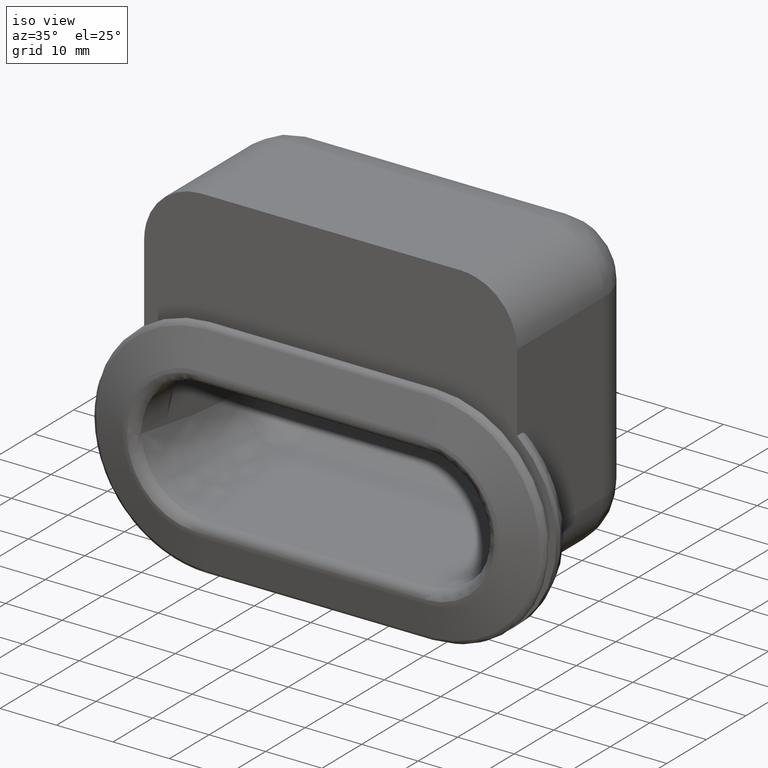
[diagram: clean part render]
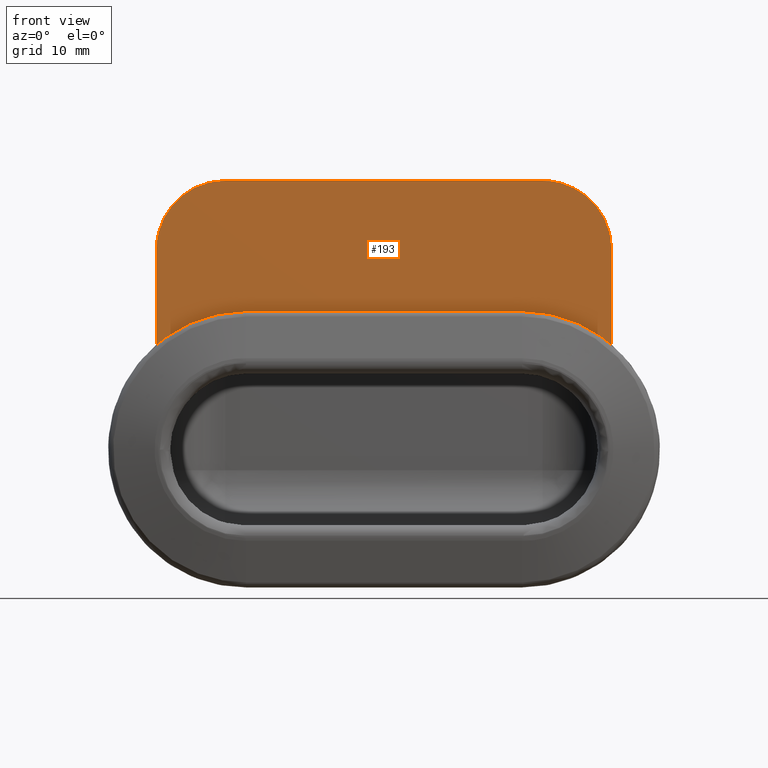
[diagram: tour spotlight — one face highlighted and labeled with its STEP entity id]
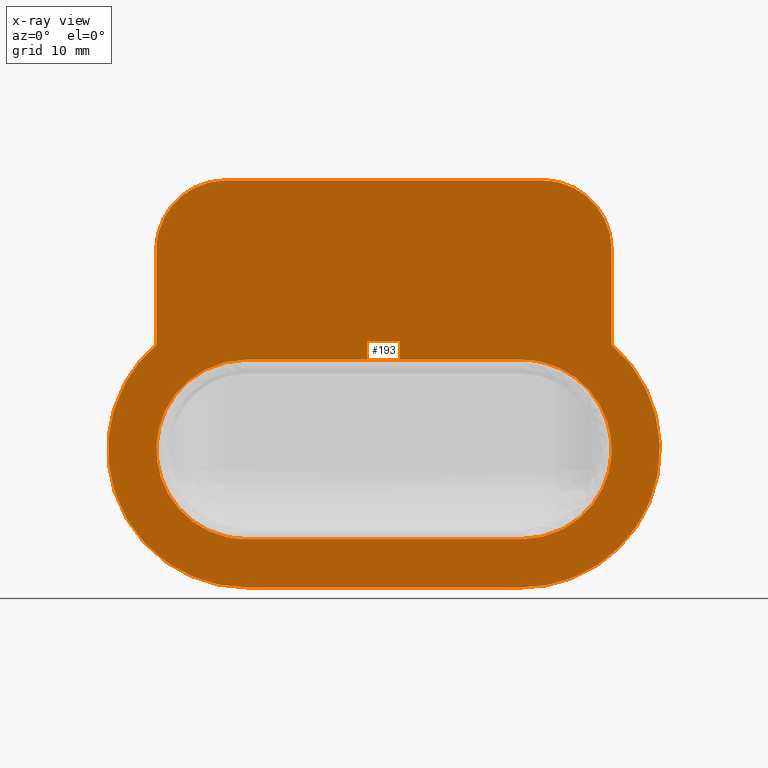
[diagram: x-ray of the same camera — body ghosted, this tour face saturated]
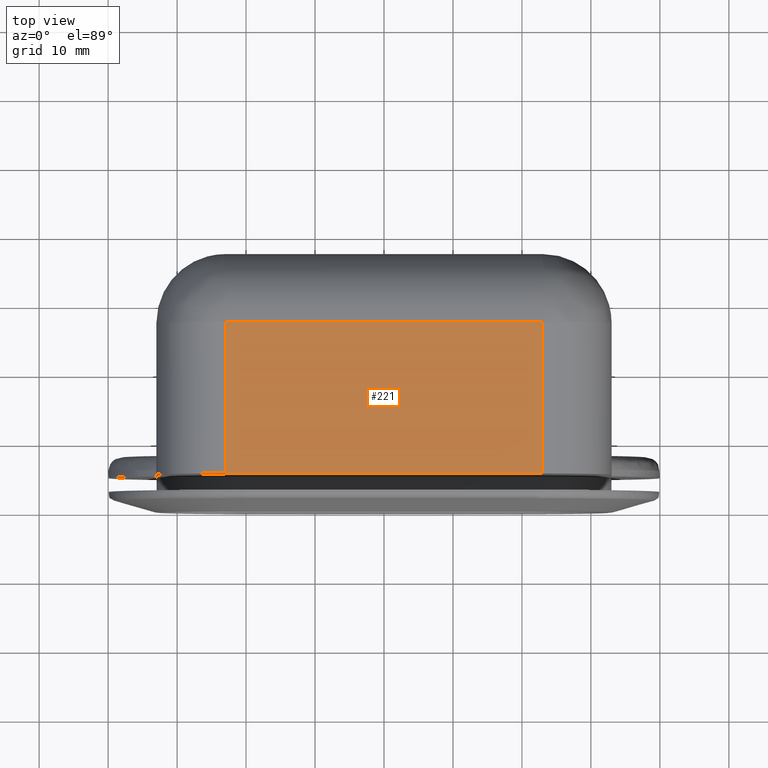
[diagram: tour spotlight — one face highlighted and labeled with its STEP entity id]
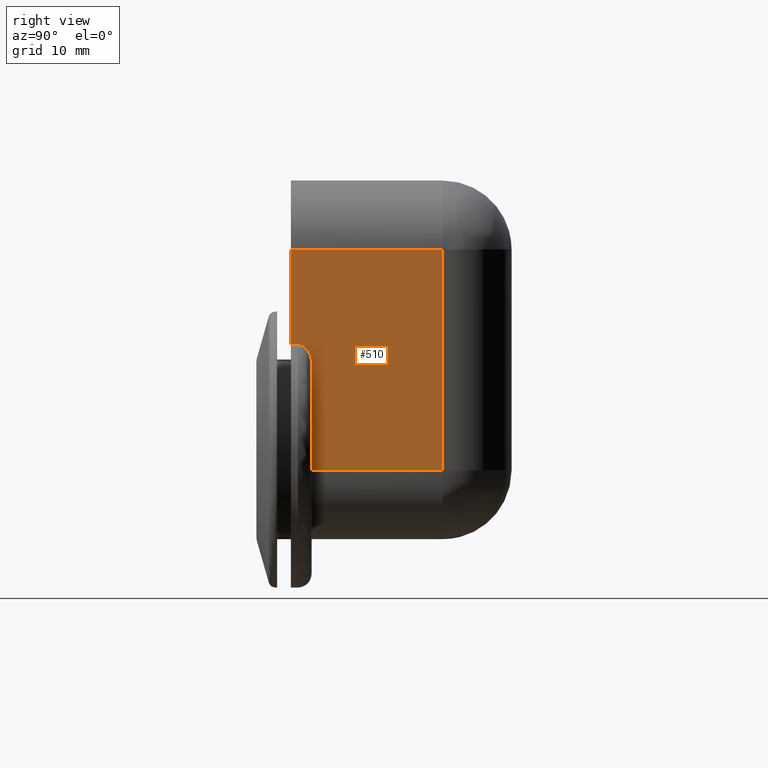
[diagram: tour spotlight — one face highlighted and labeled with its STEP entity id]
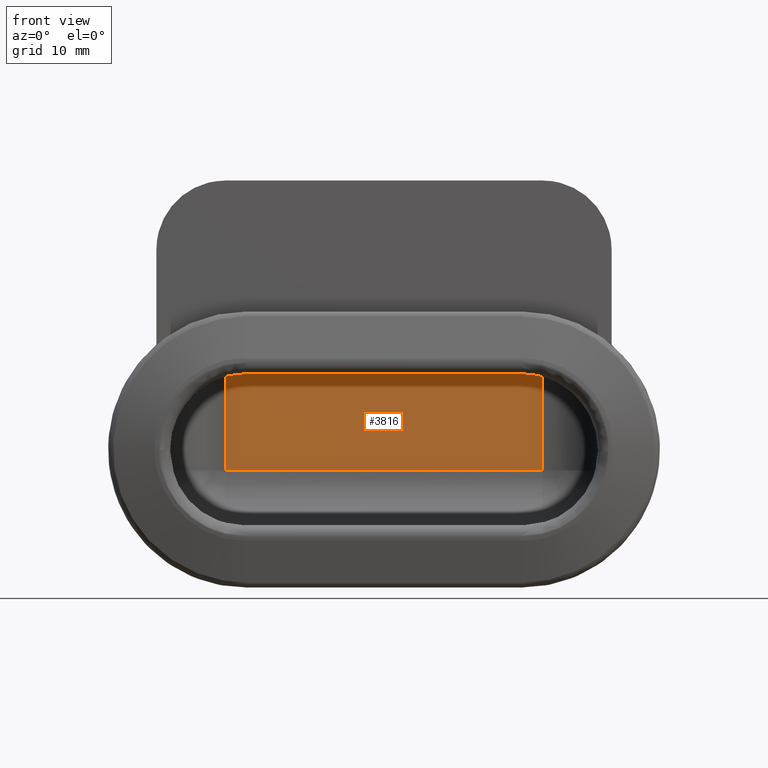
[diagram: tour spotlight — one face highlighted and labeled with its STEP entity id]
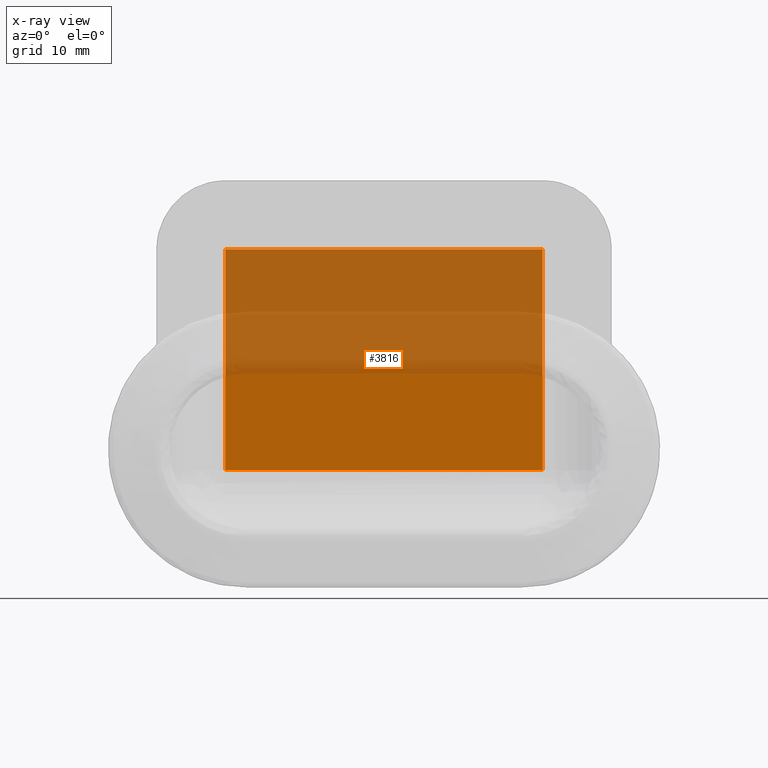
[diagram: x-ray of the same camera — body ghosted, this tour face saturated]
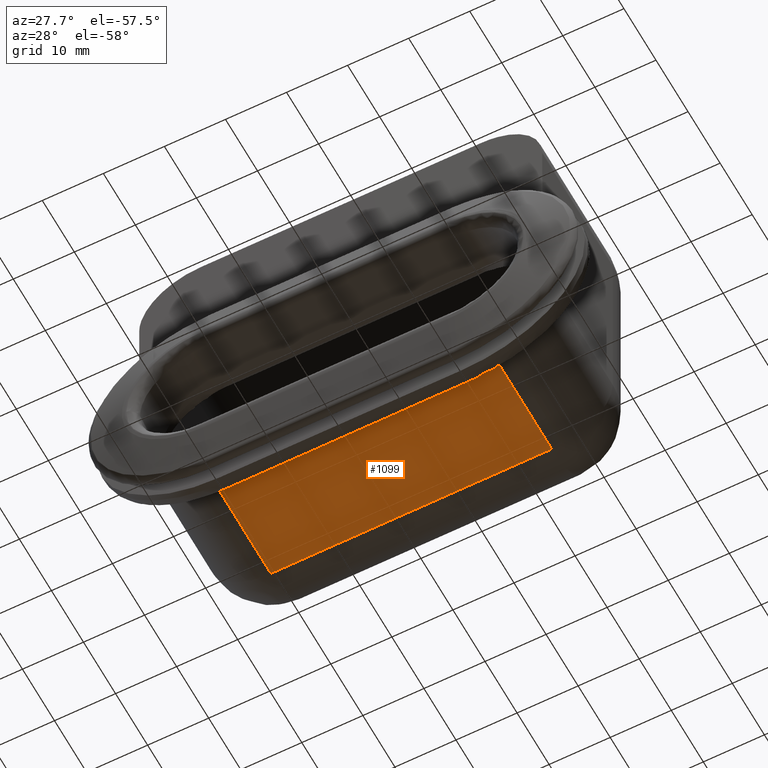
[diagram: tour spotlight — one face highlighted and labeled with its STEP entity id]
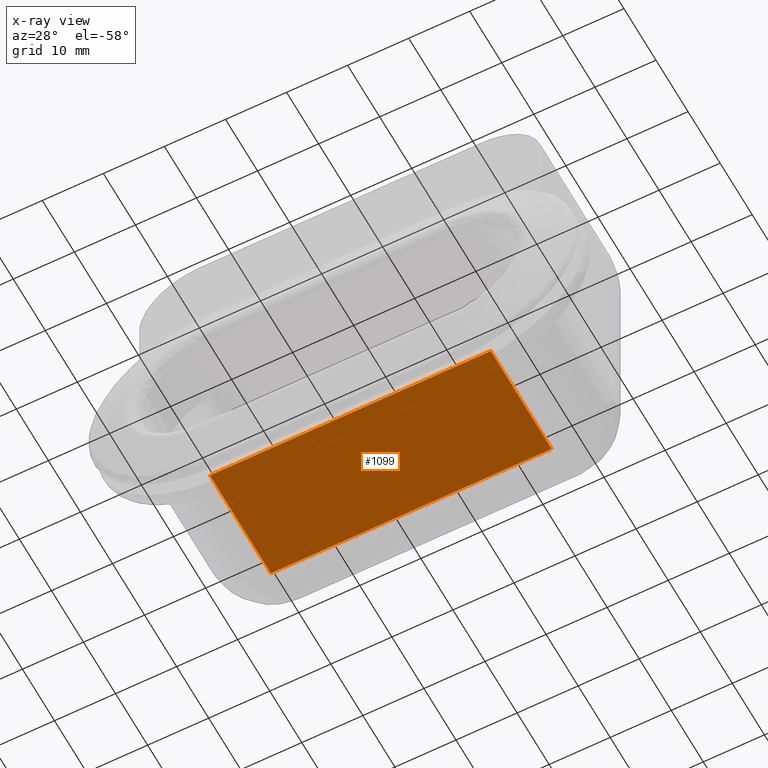
[diagram: x-ray of the same camera — body ghosted, this tour face saturated]
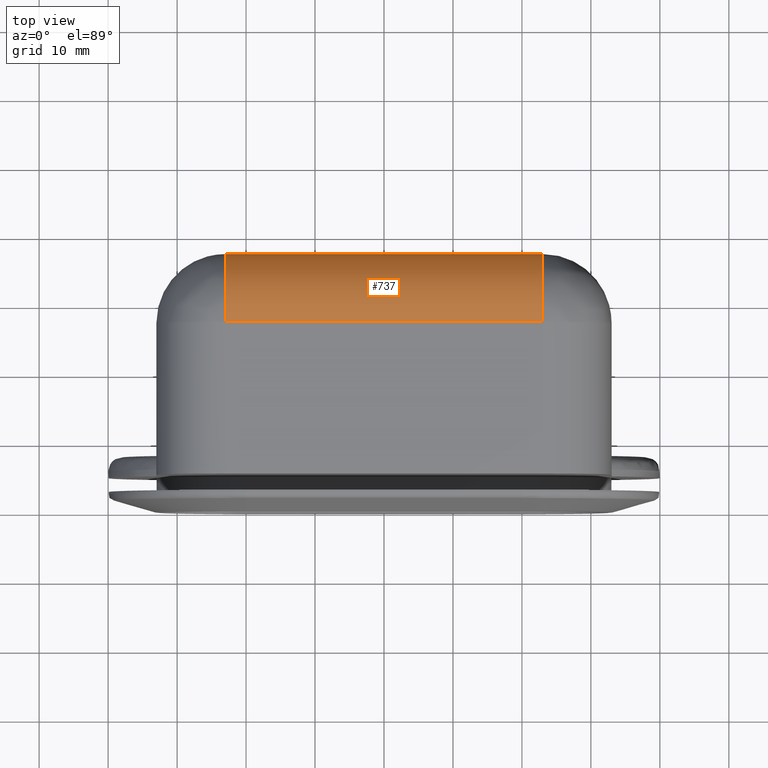
[diagram: tour spotlight — one face highlighted and labeled with its STEP entity id]
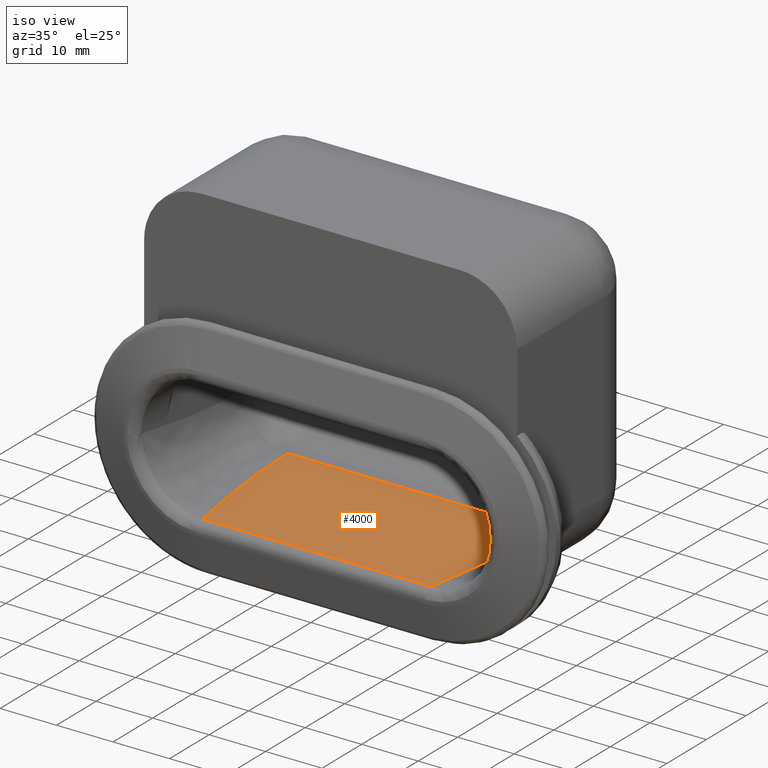
[diagram: tour spotlight — one face highlighted and labeled with its STEP entity id]
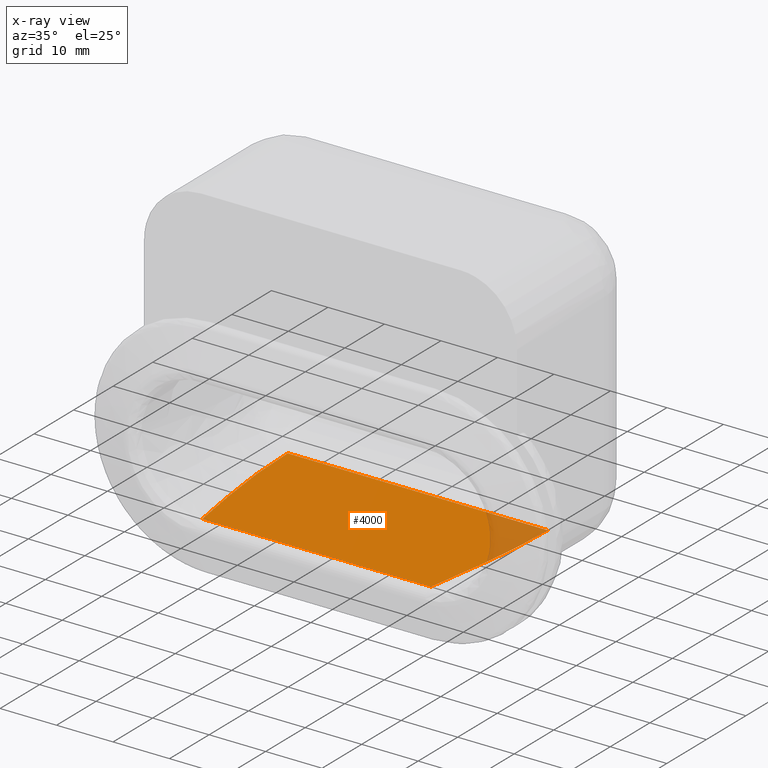
[diagram: x-ray of the same camera — body ghosted, this tour face saturated]
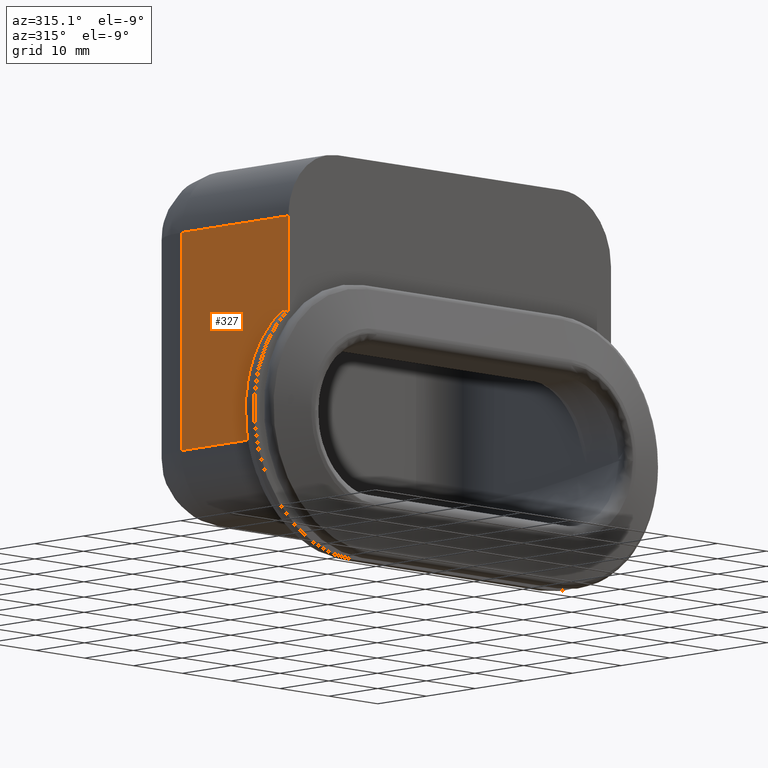
[diagram: tour spotlight — one face highlighted and labeled with its STEP entity id]
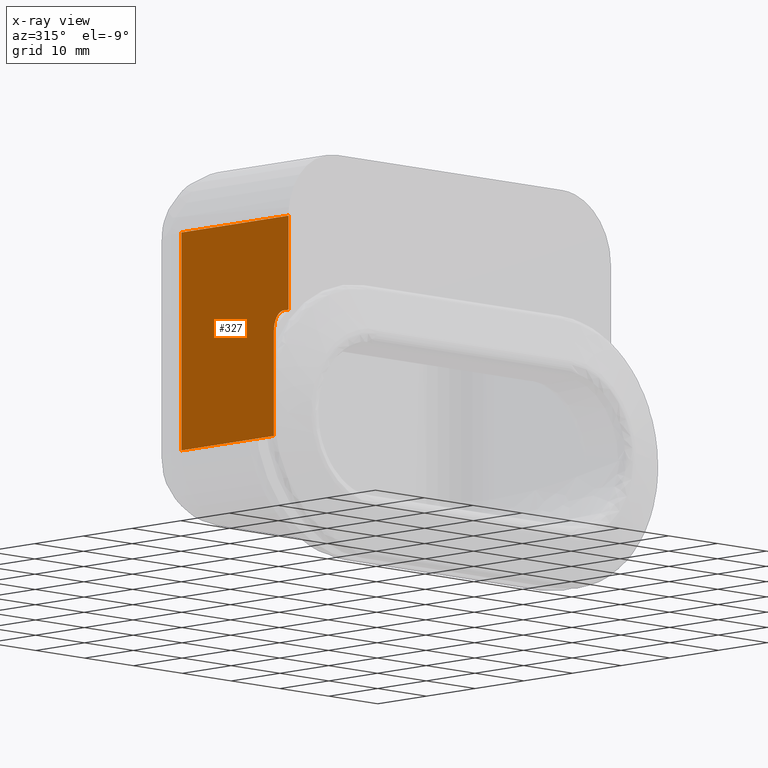
[diagram: x-ray of the same camera — body ghosted, this tour face saturated]
A machine part: a face-by-face anatomy tour. The part has 82 B-rep faces; the first image is the clean iso view, then the 8 largest visible faces are spotlighted one at a time (largest first), each with its STEP entity span.

Face 1 — front view, entity #193. An x-ray twin of the same camera follows (body ghosted, this face saturated) — the face is partly hidden behind the body. In plain terms, the highlighted face is a freeform B-spline surface patch.
Definition (entity closure, byte-faithful):
#44=CARTESIAN_POINT('',(-43.986584867967487,5.0,41.947049885646543));
#45=CARTESIAN_POINT('',(-43.986584867967487,5.0,-22.947051468149859));
#46=CARTESIAN_POINT('',(43.986583924077017,5.0,41.947049885646543));
#47=CARTESIAN_POINT('',(43.986583924077017,5.0,-22.947051468149859));
#48=B_SPLINE_SURFACE_WITH_KNOTS('',1,1,((#44,#46),(#45,#47)),.UNSPECIFIED.,.F.,.F.,.U.,(2,2),(2,2),(0.0,64.894101353796401),(0.0,87.973168792044504),.UNSPECIFIED.);
#49=CARTESIAN_POINT('',(33.0,5.0,15.198684153570650));
#50=VERTEX_POINT('',#49);
#51=CARTESIAN_POINT('',(20.0,5.0,-20.0));
#52=VERTEX_POINT('',#51);
#53=CARTESIAN_POINT('',(33.000000000000007,5.0,15.198684153570660));
#54=CARTESIAN_POINT('',(43.588794347065352,5.000000000000001,6.141694408868965));
#55=CARTESIAN_POINT('',(38.761312361764752,5.0,-6.929152795565516));
#56=CARTESIAN_POINT('',(33.933830376464137,5.000000000000001,-20.000000000000007));
#57=CARTESIAN_POINT('',(20.0,5.0,-20.0));
#65=(BOUNDED_CURVE()B_SPLINE_CURVE(2,(#53,#54,#55,#56,#57),.UNSPECIFIED.,.F.,.U.)B_SPLINE_CURVE_WITH_KNOTS((3,2,3),(0.0,0.500000000000000,1.0),.UNSPECIFIED.)CURVE()GEOMETRIC_REPRESENTATION_ITEM()RATIONAL_B_SPLINE_CURVE((1.0,0.820505222341173,1.0,0.820505222341173,1.0))REPRESENTATION_ITEM(''));
#66=EDGE_CURVE('',#50,#52,#65,.T.);
#67=ORIENTED_EDGE('',*,*,#66,.F.);
#68=CARTESIAN_POINT('',(33.0,5.0,29.0));
#69=VERTEX_POINT('',#68);
#70=CARTESIAN_POINT('',(33.0,5.0,15.198684153570650));
#71=CARTESIAN_POINT('',(33.0,5.0,29.0));
#72=QUASI_UNIFORM_CURVE('',1,(#70,#71),.UNSPECIFIED.,.F.,.U.);
#73=EDGE_CURVE('',#50,#69,#72,.T.);
#74=ORIENTED_EDGE('',*,*,#73,.T.);
#75=CARTESIAN_POINT('',(23.0,5.0,39.0));
#76=VERTEX_POINT('',#75);
#77=CARTESIAN_POINT('',(33.0,5.0,29.0));
#78=CARTESIAN_POINT('',(33.0,5.000000000000001,39.000000000000007));
#79=CARTESIAN_POINT('',(23.0,5.0,39.0));
#87=(BOUNDED_CURVE()B_SPLINE_CURVE(2,(#77,#78,#79),.UNSPECIFIED.,.F.,.U.)CURVE()GEOMETRIC_REPRESENTATION_ITEM()QUASI_UNIFORM_CURVE()RATIONAL_B_SPLINE_CURVE((1.0,0.707106781186548,1.0))REPRESENTATION_ITEM(''));
#88=EDGE_CURVE('',#69,#76,#87,.T.);
#89=ORIENTED_EDGE('',*,*,#88,.T.);
#90=CARTESIAN_POINT('',(-23.0,5.0,39.0));
#91=VERTEX_POINT('',#90);
#92=CARTESIAN_POINT('',(23.0,5.0,39.0));
#93=CARTESIAN_POINT('',(-23.0,5.0,39.0));
#94=QUASI_UNIFORM_CURVE('',1,(#92,#93),.UNSPECIFIED.,.F.,.U.);
#95=EDGE_CURVE('',#76,#91,#94,.T.);
#96=ORIENTED_EDGE('',*,*,#95,.T.);
#97=CARTESIAN_POINT('',(-33.0,5.0,29.0));
#98=VERTEX_POINT('',#97);
#99=CARTESIAN_POINT('',(-23.0,5.0,39.0));
#100=CARTESIAN_POINT('',(-33.0,5.000000000000001,39.000000000000007));
#101=CARTESIAN_POINT('',(-33.0,5.0,29.0));
#109=(BOUNDED_CURVE()B_SPLINE_CURVE(2,(#99,#100,#101),.UNSPECIFIED.,.F.,.U.)CURVE()GEOMETRIC_REPRESENTATION_ITEM()QUASI_UNIFORM_CURVE()RATIONAL_B_SPLINE_CURVE((1.0,0.707106781186548,1.0))REPRESENTATION_ITEM(''));
#110=EDGE_CURVE('',#91,#98,#109,.T.);
#111=ORIENTED_EDGE('',*,*,#110,.T.);
#112=CARTESIAN_POINT('',(-33.0,5.0,15.198684153570650));
#113=VERTEX_POINT('',#112);
#114=CARTESIAN_POINT('',(-33.0,5.0,15.198684153570650));
#115=CARTESIAN_POINT('',(-33.0,5.0,29.0));
#116=QUASI_UNIFORM_CURVE('',1,(#114,#115),.UNSPECIFIED.,.F.,.U.);
#117=EDGE_CURVE('',#113,#98,#116,.T.);
#118=ORIENTED_EDGE('',*,*,#117,.F.);
#119=CARTESIAN_POINT('',(-20.0,5.0,-20.0));
#120=VERTEX_POINT('',#119);
#121=CARTESIAN_POINT('',(-20.0,5.0,-20.0));
#122=CARTESIAN_POINT('',(-33.933830376464144,5.0,-20.0));
#123=CARTESIAN_POINT('',(-38.761312361764752,5.0,-6.929152795565513));
#124=CARTESIAN_POINT('',(-43.588794347065345,5.0,6.141694408868966));
#125=CARTESIAN_POINT('',(-33.000000000000007,5.0,15.198684153570660));
#133=(BOUNDED_CURVE()B_SPLINE_CURVE(2,(#121,#122,#123,#124,#125),.UNSPECIFIED.,.F.,.U.)B_SPLINE_CURVE_WITH_KNOTS((3,2,3),(0.0,0.500000000000000,1.0),.UNSPECIFIED.)CURVE()GEOMETRIC_REPRESENTATION_ITEM()RATIONAL_B_SPLINE_CURVE((1.0,0.820505222341173,1.0,0.820505222341173,1.0))REPRESENTATION_ITEM(''));
#134=EDGE_CURVE('',#120,#113,#133,.T.);
#135=ORIENTED_EDGE('',*,*,#134,.F.);
#136=CARTESIAN_POINT('',(20.0,5.0,-20.0));
#137=CARTESIAN_POINT('',(-20.0,5.0,-20.0));
#138=QUASI_UNIFORM_CURVE('',1,(#136,#137),.UNSPECIFIED.,.F.,.U.);
#139=EDGE_CURVE('',#52,#120,#138,.T.);
#140=ORIENTED_EDGE('',*,*,#139,.F.);
#141=EDGE_LOOP('',(#67,#74,#89,#96,#111,#118,#135,#140));
#142=FACE_OUTER_BOUND('',#141,.T.);
#143=CARTESIAN_POINT('',(20.0,5.0,13.0));
#144=VERTEX_POINT('',#143);
#145=CARTESIAN_POINT('',(-20.0,5.0,13.0));
#146=VERTEX_POINT('',#145);
#147=CARTESIAN_POINT('',(20.0,5.0,13.0));
#148=CARTESIAN_POINT('',(-20.0,5.0,13.0));
#149=QUASI_UNIFORM_CURVE('',1,(#147,#148),.UNSPECIFIED.,.F.,.U.);
#150=EDGE_CURVE('',#144,#146,#149,.T.);
#151=ORIENTED_EDGE('',*,*,#150,.F.);
#152=CARTESIAN_POINT('',(20.0,5.0,-13.0));
#153=VERTEX_POINT('',#152);
#154=CARTESIAN_POINT('',(20.0,5.0,-13.0));
#155=CARTESIAN_POINT('',(33.0,4.999999999999999,-13.0));
#156=CARTESIAN_POINT('',(33.0,5.0,0.0));
#157=CARTESIAN_POINT('',(33.0,4.999999999999999,13.0));
#158=CARTESIAN_POINT('',(20.0,5.0,13.0));
#166=(BOUNDED_CURVE()B_SPLINE_CURVE(2,(#154,#155,#156,#157,#158),.UNSPECIFIED.,.F.,.U.)B_SPLINE_CURVE_WITH_KNOTS((3,2,3),(0.0,0.500000000000000,1.0),.UNSPECIFIED.)CURVE()GEOMETRIC_REPRESENTATION_ITEM()RATIONAL_B_SPLINE_CURVE((1.0,0.707106781186547,1.0,0.707106781186547,1.0))REPRESENTATION_ITEM(''));
#167=EDGE_CURVE('',#153,#144,#166,.T.);
#168=ORIENTED_EDGE('',*,*,#167,.F.);
#169=CARTESIAN_POINT('',(-20.0,5.0,-13.0));
#170=VERTEX_POINT('',#169);
#171=CARTESIAN_POINT('',(-20.0,5.0,-13.0));
#172=CARTESIAN_POINT('',(20.0,5.0,-13.0));
#173=QUASI_UNIFORM_CURVE('',1,(#171,#172),.UNSPECIFIED.,.F.,.U.);
#174=EDGE_CURVE('',#170,#153,#173,.T.);
#175=ORIENTED_EDGE('',*,*,#174,.F.);
#176=CARTESIAN_POINT('',(-20.0,5.0,13.0));
#177=CARTESIAN_POINT('',(-33.0,4.999999999999999,13.0));
#178=CARTESIAN_POINT('',(-33.0,5.0,0.0));
#179=CARTESIAN_POINT('',(-33.0,4.999999999999999,-13.0));
#180=CARTESIAN_POINT('',(-20.0,5.0,-13.0));
#188=(BOUNDED_CURVE()B_SPLINE_CURVE(2,(#176,#177,#178,#179,#180),.UNSPECIFIED.,.F.,.U.)B_SPLINE_CURVE_WITH_KNOTS((3,2,3),(0.0,0.500000000000000,1.0),.UNSPECIFIED.)CURVE()GEOMETRIC_REPRESENTATION_ITEM()RATIONAL_B_SPLINE_CURVE((1.0,0.707106781186547,1.0,0.707106781186547,1.0))REPRESENTATION_ITEM(''));
#189=EDGE_CURVE('',#146,#170,#188,.T.);
#190=ORIENTED_EDGE('',*,*,#189,.F.);
#191=EDGE_LOOP('',(#151,#168,#175,#190));
#192=FACE_BOUND('',#191,.T.);
#193=ADVANCED_FACE('',(#142,#192),#48,.T.);

Face 2 — top view, entity #221. In plain terms, the highlighted face is a freeform B-spline surface patch.
Definition (entity closure, byte-faithful):
#75=CARTESIAN_POINT('',(23.0,5.0,39.0));
#76=VERTEX_POINT('',#75);
#90=CARTESIAN_POINT('',(-23.0,5.0,39.0));
#91=VERTEX_POINT('',#90);
#92=CARTESIAN_POINT('',(23.0,5.0,39.0));
#93=CARTESIAN_POINT('',(-23.0,5.0,39.0));
#94=QUASI_UNIFORM_CURVE('',1,(#92,#93),.UNSPECIFIED.,.F.,.U.);
#95=EDGE_CURVE('',#76,#91,#94,.T.);
#194=CARTESIAN_POINT('',(-25.297699910843079,3.901100042640270,39.0));
#195=CARTESIAN_POINT('',(25.297701144659229,3.901100042640270,39.0));
#196=CARTESIAN_POINT('',(-25.297699910843079,28.098900547445719,39.0));
#197=CARTESIAN_POINT('',(25.297701144659229,28.098900547445719,39.0));
#198=B_SPLINE_SURFACE_WITH_KNOTS('',1,1,((#194,#196),(#195,#197)),.UNSPECIFIED.,.F.,.F.,.U.,(2,2),(2,2),(0.0,50.595401055502307),(0.0,24.197800504805450),.UNSPECIFIED.);
#199=CARTESIAN_POINT('',(23.0,27.0,39.0));
#200=VERTEX_POINT('',#199);
#201=CARTESIAN_POINT('',(-23.0,27.0,39.0));
#202=VERTEX_POINT('',#201);
#203=CARTESIAN_POINT('',(23.0,27.0,39.0));
#204=CARTESIAN_POINT('',(-23.0,27.0,39.0));
#205=QUASI_UNIFORM_CURVE('',1,(#203,#204),.UNSPECIFIED.,.F.,.U.);
#206=EDGE_CURVE('',#200,#202,#205,.T.);
#207=ORIENTED_EDGE('',*,*,#206,.T.);
#208=CARTESIAN_POINT('',(-23.0,27.0,39.0));
#209=CARTESIAN_POINT('',(-23.0,5.0,39.0));
#210=QUASI_UNIFORM_CURVE('',1,(#208,#209),.UNSPECIFIED.,.F.,.U.);
#211=EDGE_CURVE('',#202,#91,#210,.T.);
#212=ORIENTED_EDGE('',*,*,#211,.T.);
#213=ORIENTED_EDGE('',*,*,#95,.F.);
#214=CARTESIAN_POINT('',(23.0,5.0,39.0));
#215=CARTESIAN_POINT('',(23.0,27.0,39.0));
#216=QUASI_UNIFORM_CURVE('',1,(#214,#215),.UNSPECIFIED.,.F.,.U.);
#217=EDGE_CURVE('',#76,#200,#216,.T.);
#218=ORIENTED_EDGE('',*,*,#217,.T.);
#219=EDGE_LOOP('',(#207,#212,#213,#218));
#220=FACE_OUTER_BOUND('',#219,.T.);
#221=ADVANCED_FACE('',(#220),#198,.T.);

Face 3 — right view, entity #510. In plain terms, the highlighted face is a freeform B-spline surface patch.
Definition (entity closure, byte-faithful):
#49=CARTESIAN_POINT('',(33.0,5.0,15.198684153570650));
#50=VERTEX_POINT('',#49);
#68=CARTESIAN_POINT('',(33.0,5.0,29.0));
#69=VERTEX_POINT('',#68);
#70=CARTESIAN_POINT('',(33.0,5.0,15.198684153570650));
#71=CARTESIAN_POINT('',(33.0,5.0,29.0));
#72=QUASI_UNIFORM_CURVE('',1,(#70,#71),.UNSPECIFIED.,.F.,.U.);
#73=EDGE_CURVE('',#50,#69,#72,.T.);
#413=CARTESIAN_POINT('',(33.0,6.0,15.198684153570650));
#414=VERTEX_POINT('',#413);
#415=CARTESIAN_POINT('',(33.0,6.0,15.198684153570650));
#416=CARTESIAN_POINT('',(33.0,5.0,15.198684153570650));
#417=QUASI_UNIFORM_CURVE('',1,(#415,#416),.UNSPECIFIED.,.F.,.U.);
#418=EDGE_CURVE('',#414,#50,#417,.T.);
#440=CARTESIAN_POINT('',(33.0,3.901100042640270,-4.598399937977892));
#441=CARTESIAN_POINT('',(33.0,28.098900547445719,-4.598399937977892));
#442=CARTESIAN_POINT('',(33.0,3.901100042640270,30.598400796284690));
#443=CARTESIAN_POINT('',(33.0,28.098900547445719,30.598400796284690));
#444=B_SPLINE_SURFACE_WITH_KNOTS('',1,1,((#440,#442),(#441,#443)),.UNSPECIFIED.,.F.,.F.,.U.,(2,2),(2,2),(0.0,24.197800504805450),(0.0,35.196800734262581),.UNSPECIFIED.);
#445=CARTESIAN_POINT('',(33.0,27.0,-3.000000000000100));
#446=VERTEX_POINT('',#445);
#447=CARTESIAN_POINT('',(33.0,27.0,29.0));
#448=VERTEX_POINT('',#447);
#449=CARTESIAN_POINT('',(33.0,27.0,-3.000000000000100));
#450=CARTESIAN_POINT('',(33.0,27.0,29.0));
#451=QUASI_UNIFORM_CURVE('',1,(#449,#450),.UNSPECIFIED.,.F.,.U.);
#452=EDGE_CURVE('',#446,#448,#451,.T.);
#453=ORIENTED_EDGE('',*,*,#452,.T.);
#454=CARTESIAN_POINT('',(33.0,27.0,29.0));
#455=CARTESIAN_POINT('',(33.0,5.0,29.0));
#456=QUASI_UNIFORM_CURVE('',1,(#454,#455),.UNSPECIFIED.,.F.,.U.);
#457=EDGE_CURVE('',#448,#69,#456,.T.);
#458=ORIENTED_EDGE('',*,*,#457,.T.);
#459=ORIENTED_EDGE('',*,*,#73,.F.);
#460=ORIENTED_EDGE('',*,*,#418,.F.);
#461=CARTESIAN_POINT('',(33.0,8.0,12.449899597988720));
#462=VERTEX_POINT('',#461);
#463=CARTESIAN_POINT('',(33.0,6.0,15.198684153570650));
#464=CARTESIAN_POINT('',(32.999999999999993,6.158876053949413,15.198684153570650));
#465=CARTESIAN_POINT('',(33.0,6.313274602927696,15.174155626507510));
#466=CARTESIAN_POINT('',(33.0,6.501098786644616,15.115150909702150));
#467=CARTESIAN_POINT('',(33.0,6.538548857700983,15.101850269289979));
#468=CARTESIAN_POINT('',(33.0,6.612106180687763,15.072686268293740));
#469=CARTESIAN_POINT('',(33.0,6.648173470703979,15.056854811800680));
#470=CARTESIAN_POINT('',(33.000000000000007,6.754354855366921,15.005811652893160));
#471=CARTESIAN_POINT('',(33.0,6.822455652786126,14.967063786362999));
#472=CARTESIAN_POINT('',(33.000000000000007,6.920872310005949,14.902382625983510));
#473=CARTESIAN_POINT('',(33.000000000000007,6.953053488915290,14.879725586830400));
#474=CARTESIAN_POINT('',(33.0,7.016195941012128,14.832268860742669));
#475=CARTESIAN_POINT('',(32.999999999999993,7.047186794232652,14.807432871811670));
#476=CARTESIAN_POINT('',(33.0,7.137213878792151,14.730794931448980));
#477=CARTESIAN_POINT('',(33.0,7.193735001647127,14.676576241505099));
#478=CARTESIAN_POINT('',(33.000000000000007,7.300546315592877,14.562567569135391));
#479=CARTESIAN_POINT('',(33.0,7.350832495818750,14.502774000455970));
#480=CARTESIAN_POINT('',(33.000000000000007,7.421941360713493,14.409220622887650));
#481=CARTESIAN_POINT('',(33.000000000000007,7.444922408685256,14.377390681584810));
#482=CARTESIAN_POINT('',(33.000000000000007,7.489481339764557,14.312476180544060));
#483=CARTESIAN_POINT('',(33.000000000000007,7.511109023854674,14.279307337035560));
#484=CARTESIAN_POINT('',(33.0,7.614965819889417,14.111801663664149));
#485=CARTESIAN_POINT('',(32.999999999999993,7.684846007283418,13.972194122989100));
#486=CARTESIAN_POINT('',(33.000000000000007,7.802859632515817,13.683751871687830));
#487=CARTESIAN_POINT('',(33.0,7.850962307119805,13.534793378138170));
#488=CARTESIAN_POINT('',(33.0,7.927243841577534,13.228871561430919));
#489=CARTESIAN_POINT('',(33.000000000000007,7.954762094028409,13.074634717433581));
#490=CARTESIAN_POINT('',(33.0,7.991150377095184,12.763921076713160));
#491=CARTESIAN_POINT('',(33.000000000000007,8.0,12.607441828694270));
#492=CARTESIAN_POINT('',(33.0,8.0,12.449899597988720));
#493=B_SPLINE_CURVE_WITH_KNOTS('',3,(#463,#464,#465,#466,#467,#468,#469,#470,#471,#472,#473,#474,#475,#476,#477,#478,#479,#480,#481,#482,#483,#484,#485,#486,#487,#488,#489,#490,#491,#492),.UNSPECIFIED.,.F.,.U.,(4,2,2,2,2,2,2,2,2,2,2,2,2,2,4),(0.0,0.125000000000001,0.156250000000001,0.187500000000001,0.250000000000000,0.281249999999999,0.312499999999999,0.374999999999997,0.437499999999996,0.468749999999995,0.499999999999995,0.624999999999996,0.749999999999997,0.874999999999999,1.0),.UNSPECIFIED.);
#494=EDGE_CURVE('',#414,#462,#493,.T.);
#495=ORIENTED_EDGE('',*,*,#494,.T.);
#496=CARTESIAN_POINT('',(33.0,8.0,-3.000000000000100));
#497=VERTEX_POINT('',#496);
#498=CARTESIAN_POINT('',(33.0,8.0,12.449899597988720));
#499=CARTESIAN_POINT('',(33.0,8.0,-3.000000000000100));
#500=QUASI_UNIFORM_CURVE('',1,(#498,#499),.UNSPECIFIED.,.F.,.U.);
#501=EDGE_CURVE('',#462,#497,#500,.T.);
#502=ORIENTED_EDGE('',*,*,#501,.T.);
#503=CARTESIAN_POINT('',(33.0,8.0,-3.000000000000100));
#504=CARTESIAN_POINT('',(33.0,27.0,-3.000000000000100));
#505=QUASI_UNIFORM_CURVE('',1,(#503,#504),.UNSPECIFIED.,.F.,.U.);
#506=EDGE_CURVE('',#497,#446,#505,.T.);
#507=ORIENTED_EDGE('',*,*,#506,.T.);
#508=EDGE_LOOP('',(#453,#458,#459,#460,#495,#502,#507));
#509=FACE_OUTER_BOUND('',#508,.T.);
#510=ADVANCED_FACE('',(#509),#444,.T.);

Face 4 — front view, entity #3816. An x-ray twin of the same camera follows (body ghosted, this face saturated) — the face is partly hidden behind the body. In plain terms, the highlighted face is a freeform B-spline surface patch.
Definition (entity closure, byte-faithful):
#3228=CARTESIAN_POINT('',(23.0,35.0,-3.0));
#3229=VERTEX_POINT('',#3228);
#3347=CARTESIAN_POINT('',(-23.0,35.0,-3.0));
#3348=VERTEX_POINT('',#3347);
#3399=CARTESIAN_POINT('',(-23.0,35.0,-3.0));
#3400=CARTESIAN_POINT('',(23.0,35.0,-3.0));
#3401=QUASI_UNIFORM_CURVE('',1,(#3399,#3400),.UNSPECIFIED.,.F.,.U.);
#3402=EDGE_CURVE('',#3348,#3229,#3401,.T.);
#3422=CARTESIAN_POINT('',(23.0,35.0,29.0));
#3423=VERTEX_POINT('',#3422);
#3424=CARTESIAN_POINT('',(23.0,35.0,-3.0));
#3425=CARTESIAN_POINT('',(23.0,35.0,29.0));
#3426=QUASI_UNIFORM_CURVE('',1,(#3424,#3425),.UNSPECIFIED.,.F.,.U.);
#3427=EDGE_CURVE('',#3229,#3423,#3426,.T.);
#3475=CARTESIAN_POINT('',(-23.0,35.0,29.0));
#3476=VERTEX_POINT('',#3475);
#3477=CARTESIAN_POINT('',(-23.0,35.0,29.0));
#3478=CARTESIAN_POINT('',(-23.0,35.0,-3.0));
#3479=QUASI_UNIFORM_CURVE('',1,(#3477,#3478),.UNSPECIFIED.,.F.,.U.);
#3480=EDGE_CURVE('',#3476,#3348,#3479,.T.);
#3676=CARTESIAN_POINT('',(23.0,35.0,29.0));
#3677=CARTESIAN_POINT('',(-23.0,35.0,29.0));
#3678=QUASI_UNIFORM_CURVE('',1,(#3676,#3677),.UNSPECIFIED.,.F.,.U.);
#3679=EDGE_CURVE('',#3423,#3476,#3678,.T.);
#3805=CARTESIAN_POINT('',(-25.297699910843090,35.0,30.598399937977788));
#3806=CARTESIAN_POINT('',(-25.297699910843090,35.0,-4.598400796284677));
#3807=CARTESIAN_POINT('',(25.297701144659229,35.0,30.598399937977788));
#3808=CARTESIAN_POINT('',(25.297701144659229,35.0,-4.598400796284677));
#3809=B_SPLINE_SURFACE_WITH_KNOTS('',1,1,((#3805,#3807),(#3806,#3808)),.UNSPECIFIED.,.F.,.F.,.U.,(2,2),(2,2),(0.0,35.196800734262467),(0.0,50.595401055502322),.UNSPECIFIED.);
#3810=ORIENTED_EDGE('',*,*,#3480,.T.);
#3811=ORIENTED_EDGE('',*,*,#3402,.T.);
#3812=ORIENTED_EDGE('',*,*,#3427,.T.);
#3813=ORIENTED_EDGE('',*,*,#3679,.T.);
#3814=EDGE_LOOP('',(#3810,#3811,#3812,#3813));
#3815=FACE_OUTER_BOUND('',#3814,.T.);
#3816=ADVANCED_FACE('',(#3815),#3809,.T.);

Face 5 — auxiliary view, entity #1099. An x-ray twin of the same camera follows (body ghosted, this face saturated) — the face is partly hidden behind the body. In plain terms, the highlighted face is a freeform B-spline surface patch.
Definition (entity closure, byte-faithful):
#833=CARTESIAN_POINT('',(-23.0,27.0,-13.0));
#834=VERTEX_POINT('',#833);
#848=CARTESIAN_POINT('',(-23.0,8.0,-13.0));
#849=VERTEX_POINT('',#848);
#850=CARTESIAN_POINT('',(-23.0,8.0,-13.0));
#851=CARTESIAN_POINT('',(-23.0,27.0,-13.0));
#852=QUASI_UNIFORM_CURVE('',1,(#850,#851),.UNSPECIFIED.,.F.,.U.);
#853=EDGE_CURVE('',#849,#834,#852,.T.);
#881=CARTESIAN_POINT('',(23.0,8.0,-13.0));
#882=VERTEX_POINT('',#881);
#883=CARTESIAN_POINT('',(-23.0,8.0,-13.0));
#884=CARTESIAN_POINT('',(23.0,8.0,-13.0));
#885=QUASI_UNIFORM_CURVE('',1,(#883,#884),.UNSPECIFIED.,.F.,.U.);
#886=EDGE_CURVE('',#849,#882,#885,.T.);
#972=CARTESIAN_POINT('',(23.0,27.0,-13.0));
#973=VERTEX_POINT('',#972);
#974=CARTESIAN_POINT('',(23.0,27.0,-13.0));
#975=CARTESIAN_POINT('',(23.0,8.0,-13.0));
#976=QUASI_UNIFORM_CURVE('',1,(#974,#975),.UNSPECIFIED.,.F.,.U.);
#977=EDGE_CURVE('',#973,#882,#976,.T.);
#1084=CARTESIAN_POINT('',(25.297699910843079,7.050950036825686,-13.0));
#1085=CARTESIAN_POINT('',(-25.297701144659229,7.050950036825686,-13.0));
#1086=CARTESIAN_POINT('',(25.297699910843079,27.949050472794021,-13.0));
#1087=CARTESIAN_POINT('',(-25.297701144659229,27.949050472794021,-13.0));
#1088=B_SPLINE_SURFACE_WITH_KNOTS('',1,1,((#1084,#1086),(#1085,#1087)),.UNSPECIFIED.,.F.,.F.,.U.,(2,2),(2,2),(0.0,50.595401055502307),(0.0,20.898100435968342),.UNSPECIFIED.);
#1089=ORIENTED_EDGE('',*,*,#886,.F.);
#1090=ORIENTED_EDGE('',*,*,#853,.T.);
#1091=CARTESIAN_POINT('',(-23.0,27.0,-13.0));
#1092=CARTESIAN_POINT('',(23.0,27.0,-13.0));
#1093=QUASI_UNIFORM_CURVE('',1,(#1091,#1092),.UNSPECIFIED.,.F.,.U.);
#1094=EDGE_CURVE('',#834,#973,#1093,.T.);
#1095=ORIENTED_EDGE('',*,*,#1094,.T.);
#1096=ORIENTED_EDGE('',*,*,#977,.T.);
#1097=EDGE_LOOP('',(#1089,#1090,#1095,#1096));
#1098=FACE_OUTER_BOUND('',#1097,.T.);
#1099=ADVANCED_FACE('',(#1098),#1088,.T.);

Face 6 — top view, entity #737. In plain terms, the highlighted face is a freeform B-spline surface patch.
Definition (entity closure, byte-faithful):
#199=CARTESIAN_POINT('',(23.0,27.0,39.0));
#200=VERTEX_POINT('',#199);
#201=CARTESIAN_POINT('',(-23.0,27.0,39.0));
#202=VERTEX_POINT('',#201);
#203=CARTESIAN_POINT('',(23.0,27.0,39.0));
#204=CARTESIAN_POINT('',(-23.0,27.0,39.0));
#205=QUASI_UNIFORM_CURVE('',1,(#203,#204),.UNSPECIFIED.,.F.,.U.);
#206=EDGE_CURVE('',#200,#202,#205,.T.);
#685=CARTESIAN_POINT('',(24.150000000000009,36.996573249755571,28.738230516921259));
#686=CARTESIAN_POINT('',(-24.178750000000012,36.996573249755571,28.738230516921259));
#687=CARTESIAN_POINT('',(24.150000000000002,37.282244511959910,39.647575885941180));
#688=CARTESIAN_POINT('',(-24.178750000000001,37.282244511959910,39.647575885941180));
#689=CARTESIAN_POINT('',(24.150000000000009,26.389514604651449,38.981347984218672));
#690=CARTESIAN_POINT('',(-24.178750000000012,26.389514604651449,38.981347984218672));
#698=(BOUNDED_SURFACE()B_SPLINE_SURFACE(1,2,((#685,#687,#689),(#686,#688,#690)),.UNSPECIFIED.,.F.,.F.,.U.)B_SPLINE_SURFACE_WITH_KNOTS((2,2),(3,3),(0.0,48.328750000000007),(0.0,17.600421235673331),.UNSPECIFIED.)GEOMETRIC_REPRESENTATION_ITEM()RATIONAL_B_SPLINE_SURFACE(((1.0,0.675590207615660,1.0),(1.0,0.675590207615660,1.0)))REPRESENTATION_ITEM('')SURFACE());
#699=CARTESIAN_POINT('',(23.0,37.0,29.0));
#700=VERTEX_POINT('',#699);
#701=CARTESIAN_POINT('',(23.0,27.0,39.0));
#702=CARTESIAN_POINT('',(22.999999999999993,37.0,39.000000000000007));
#703=CARTESIAN_POINT('',(23.0,37.0,29.0));
#711=(BOUNDED_CURVE()B_SPLINE_CURVE(2,(#701,#702,#703),.UNSPECIFIED.,.F.,.U.)CURVE()GEOMETRIC_REPRESENTATION_ITEM()QUASI_UNIFORM_CURVE()RATIONAL_B_SPLINE_CURVE((1.0,0.707106781186548,1.0))REPRESENTATION_ITEM(''));
#712=EDGE_CURVE('',#200,#700,#711,.T.);
#713=ORIENTED_EDGE('',*,*,#712,.T.);
#714=CARTESIAN_POINT('',(-23.0,37.0,29.0));
#715=VERTEX_POINT('',#714);
#716=CARTESIAN_POINT('',(-23.0,37.0,29.0));
#717=CARTESIAN_POINT('',(23.0,37.0,29.0));
#718=QUASI_UNIFORM_CURVE('',1,(#716,#717),.UNSPECIFIED.,.F.,.U.);
#719=EDGE_CURVE('',#715,#700,#718,.T.);
#720=ORIENTED_EDGE('',*,*,#719,.F.);
#721=CARTESIAN_POINT('',(-23.0,27.0,39.0));
#722=CARTESIAN_POINT('',(-22.999999999999993,37.0,39.000000000000007));
#723=CARTESIAN_POINT('',(-23.0,37.0,29.0));
#731=(BOUNDED_CURVE()B_SPLINE_CURVE(2,(#721,#722,#723),.UNSPECIFIED.,.F.,.U.)CURVE()GEOMETRIC_REPRESENTATION_ITEM()QUASI_UNIFORM_CURVE()RATIONAL_B_SPLINE_CURVE((1.0,0.707106781186548,1.0))REPRESENTATION_ITEM(''));
#732=EDGE_CURVE('',#202,#715,#731,.T.);
#733=ORIENTED_EDGE('',*,*,#732,.F.);
#734=ORIENTED_EDGE('',*,*,#206,.F.);
#735=EDGE_LOOP('',(#713,#720,#733,#734));
#736=FACE_OUTER_BOUND('',#735,.T.);
#737=ADVANCED_FACE('',(#736),#698,.T.);

Face 7 — iso view, entity #4000. An x-ray twin of the same camera follows (body ghosted, this face saturated) — the face is partly hidden behind the body. In plain terms, the highlighted face is a freeform B-spline surface patch.
Definition (entity closure, byte-faithful):
#1757=CARTESIAN_POINT('',(-20.249742798353850,1.499999999999714,-11.0));
#1758=VERTEX_POINT('',#1757);
#1964=CARTESIAN_POINT('',(20.249742798353850,1.499999999999714,-11.0));
#1965=VERTEX_POINT('',#1964);
#1979=CARTESIAN_POINT('',(-20.249742798353850,1.499999999999714,-11.0));
#1980=CARTESIAN_POINT('',(20.249742798353850,1.499999999999714,-11.0));
#1981=QUASI_UNIFORM_CURVE('',1,(#1979,#1980),.UNSPECIFIED.,.F.,.U.);
#1982=EDGE_CURVE('',#1758,#1965,#1981,.T.);
#3169=CARTESIAN_POINT('',(23.0,27.0,-11.0));
#3170=VERTEX_POINT('',#3169);
#3171=CARTESIAN_POINT('',(20.249742798353850,1.499999999999714,-11.0));
#3172=CARTESIAN_POINT('',(21.662037037036971,9.999999999999615,-11.0));
#3173=CARTESIAN_POINT('',(23.0,18.499999999999812,-11.0));
#3174=CARTESIAN_POINT('',(23.0,27.0,-11.0));
#3175=B_SPLINE_CURVE_WITH_KNOTS('',3,(#3171,#3172,#3173,#3174),.UNSPECIFIED.,.F.,.U.,(4,4),(0.0,0.314814814814822),.UNSPECIFIED.);
#3176=EDGE_CURVE('',#1965,#3170,#3175,.T.);
#3298=CARTESIAN_POINT('',(-23.0,27.0,-11.0));
#3299=VERTEX_POINT('',#3298);
#3300=CARTESIAN_POINT('',(-23.0,27.0,-11.0));
#3301=CARTESIAN_POINT('',(-23.0,18.499999999999812,-11.0));
#3302=CARTESIAN_POINT('',(-21.662037037036971,9.999999999999615,-11.0));
#3303=CARTESIAN_POINT('',(-20.249742798353850,1.499999999999714,-11.0));
#3304=B_SPLINE_CURVE_WITH_KNOTS('',3,(#3300,#3301,#3302,#3303),.UNSPECIFIED.,.F.,.U.,(4,4),(0.0,0.314814814814822),.UNSPECIFIED.);
#3305=EDGE_CURVE('',#3299,#1758,#3304,.T.);
#3393=CARTESIAN_POINT('',(23.0,27.0,-11.0));
#3394=CARTESIAN_POINT('',(-23.0,27.0,-11.0));
#3395=QUASI_UNIFORM_CURVE('',1,(#3393,#3394),.UNSPECIFIED.,.F.,.U.);
#3396=EDGE_CURVE('',#3170,#3299,#3395,.T.);
#3989=CARTESIAN_POINT('',(-25.297699910843079,0.226275049423647,-11.0));
#3990=CARTESIAN_POINT('',(25.297701144659221,0.226275049423647,-11.0));
#3991=CARTESIAN_POINT('',(-25.297699910843079,28.273725634539360,-11.0));
#3992=CARTESIAN_POINT('',(25.297701144659221,28.273725634539360,-11.0));
#3993=B_SPLINE_SURFACE_WITH_KNOTS('',1,1,((#3989,#3991),(#3990,#3992)),.UNSPECIFIED.,.F.,.F.,.U.,(2,2),(2,2),(0.0,50.595401055502293),(0.0,28.047450585115719),.UNSPECIFIED.);
#3994=ORIENTED_EDGE('',*,*,#3305,.T.);
#3995=ORIENTED_EDGE('',*,*,#1982,.T.);
#3996=ORIENTED_EDGE('',*,*,#3176,.T.);
#3997=ORIENTED_EDGE('',*,*,#3396,.T.);
#3998=EDGE_LOOP('',(#3994,#3995,#3996,#3997));
#3999=FACE_OUTER_BOUND('',#3998,.T.);
#4000=ADVANCED_FACE('',(#3999),#3993,.T.);

Face 8 — auxiliary view, entity #327. An x-ray twin of the same camera follows (body ghosted, this face saturated) — the face is partly hidden behind the body. In plain terms, the highlighted face is a freeform B-spline surface patch.
Definition (entity closure, byte-faithful):
#97=CARTESIAN_POINT('',(-33.0,5.0,29.0));
#98=VERTEX_POINT('',#97);
#112=CARTESIAN_POINT('',(-33.0,5.0,15.198684153570650));
#113=VERTEX_POINT('',#112);
#114=CARTESIAN_POINT('',(-33.0,5.0,15.198684153570650));
#115=CARTESIAN_POINT('',(-33.0,5.0,29.0));
#116=QUASI_UNIFORM_CURVE('',1,(#114,#115),.UNSPECIFIED.,.F.,.U.);
#117=EDGE_CURVE('',#113,#98,#116,.T.);
#238=CARTESIAN_POINT('',(-33.0,27.0,29.0));
#239=VERTEX_POINT('',#238);
#253=CARTESIAN_POINT('',(-33.0,5.0,29.0));
#254=CARTESIAN_POINT('',(-33.0,27.0,29.0));
#255=QUASI_UNIFORM_CURVE('',1,(#253,#254),.UNSPECIFIED.,.F.,.U.);
#256=EDGE_CURVE('',#98,#239,#255,.T.);
#261=CARTESIAN_POINT('',(-33.0,3.901100042640270,-4.598399937977892));
#262=CARTESIAN_POINT('',(-33.0,28.098900547445719,-4.598399937977892));
#263=CARTESIAN_POINT('',(-33.0,3.901100042640270,30.598400796284690));
#264=CARTESIAN_POINT('',(-33.0,28.098900547445719,30.598400796284690));
#265=B_SPLINE_SURFACE_WITH_KNOTS('',1,1,((#261,#263),(#262,#264)),.UNSPECIFIED.,.F.,.F.,.U.,(2,2),(2,2),(0.0,24.197800504805450),(0.0,35.196800734262581),.UNSPECIFIED.);
#266=CARTESIAN_POINT('',(-33.0,27.0,-3.000000000000100));
#267=VERTEX_POINT('',#266);
#268=CARTESIAN_POINT('',(-33.0,27.0,29.0));
#269=CARTESIAN_POINT('',(-33.0,27.0,-3.000000000000100));
#270=QUASI_UNIFORM_CURVE('',1,(#268,#269),.UNSPECIFIED.,.F.,.U.);
#271=EDGE_CURVE('',#239,#267,#270,.T.);
#272=ORIENTED_EDGE('',*,*,#271,.T.);
#273=CARTESIAN_POINT('',(-33.0,8.0,-3.000000000000100));
#274=VERTEX_POINT('',#273);
#275=CARTESIAN_POINT('',(-33.0,27.0,-3.000000000000100));
#276=CARTESIAN_POINT('',(-33.0,8.0,-3.000000000000100));
#277=QUASI_UNIFORM_CURVE('',1,(#275,#276),.UNSPECIFIED.,.F.,.U.);
#278=EDGE_CURVE('',#267,#274,#277,.T.);
#279=ORIENTED_EDGE('',*,*,#278,.T.);
#280=CARTESIAN_POINT('',(-33.0,8.0,12.449899597988720));
#281=VERTEX_POINT('',#280);
#282=CARTESIAN_POINT('',(-33.0,8.0,12.449899597988720));
#283=CARTESIAN_POINT('',(-33.0,8.0,-3.000000000000100));
#284=QUASI_UNIFORM_CURVE('',1,(#282,#283),.UNSPECIFIED.,.F.,.U.);
#285=EDGE_CURVE('',#281,#274,#284,.T.);
#286=ORIENTED_EDGE('',*,*,#285,.F.);
#287=CARTESIAN_POINT('',(-33.0,6.0,15.198684153570650));
#288=VERTEX_POINT('',#287);
#289=CARTESIAN_POINT('',(-33.0,8.0,12.449899597988720));
#290=CARTESIAN_POINT('',(-33.000000000000007,8.0,12.607426845185801));
#291=CARTESIAN_POINT('',(-33.0,7.991149840211058,12.763467691492609));
#292=CARTESIAN_POINT('',(-33.0,7.955069671906816,13.072462454134200));
#293=CARTESIAN_POINT('',(-33.000000000000007,7.927854711018699,13.225418897746110));
#294=CARTESIAN_POINT('',(-33.0,7.871657852622438,13.452271401061120));
#295=CARTESIAN_POINT('',(-33.000000000000007,7.850350782948042,13.527456462454211));
#296=CARTESIAN_POINT('',(-33.000000000000007,7.802118995399875,13.676883090717819));
#297=CARTESIAN_POINT('',(-33.000000000000007,7.775079668614651,13.751361717160060));
#298=CARTESIAN_POINT('',(-33.0,7.686076477225162,13.969741311545249));
#299=CARTESIAN_POINT('',(-32.999999999999993,7.616098303414040,14.109550144481780));
#300=CARTESIAN_POINT('',(-33.000000000000007,7.492674788487522,14.309244127323019));
#301=CARTESIAN_POINT('',(-33.000000000000007,7.448438590416992,14.374128604715290));
#302=CARTESIAN_POINT('',(-33.0,7.353014026398090,14.500123466318669));
#303=CARTESIAN_POINT('',(-33.000000000000007,7.302216235315923,14.560664751170840));
#304=CARTESIAN_POINT('',(-32.999999999999993,7.141618553268700,14.732440114069380));
#305=CARTESIAN_POINT('',(-33.0,7.023104971866444,14.834871386097060));
#306=CARTESIAN_POINT('',(-32.999999999999993,6.758178459266931,15.009623824624340));
#307=CARTESIAN_POINT('',(-33.0,6.617296732607608,15.078273533774579));
#308=CARTESIAN_POINT('',(-32.999999999999993,6.429366144087795,15.137773857231640));
#309=CARTESIAN_POINT('',(-32.999999999999993,6.391039300855047,15.148371006927110));
#310=CARTESIAN_POINT('',(-33.0,6.313868298805834,15.166572205784851));
#311=CARTESIAN_POINT('',(-33.0,6.275091779149441,15.174173450207020));
#312=CARTESIAN_POINT('',(-33.000000000000007,6.158188339441893,15.192472644045850));
#313=CARTESIAN_POINT('',(-33.000000000000007,6.079489844542944,15.198684153570660));
#314=CARTESIAN_POINT('',(-33.0,6.0,15.198684153570650));
#315=B_SPLINE_CURVE_WITH_KNOTS('',3,(#289,#290,#291,#292,#293,#294,#295,#296,#297,#298,#299,#300,#301,#302,#303,#304,#305,#306,#307,#308,#309,#310,#311,#312,#313,#314),.UNSPECIFIED.,.F.,.U.,(4,2,2,2,2,2,2,2,2,2,2,2,4),(0.0,0.125000000000000,0.250000000000000,0.312500000000000,0.375000000000001,0.499999999999999,0.562499999999999,0.624999999999999,0.749999999999999,0.874999999999999,0.906249999999999,0.937499999999999,1.0),.UNSPECIFIED.);
#316=EDGE_CURVE('',#281,#288,#315,.T.);
#317=ORIENTED_EDGE('',*,*,#316,.T.);
#318=CARTESIAN_POINT('',(-33.0,6.0,15.198684153570650));
#319=CARTESIAN_POINT('',(-33.0,5.0,15.198684153570650));
#320=QUASI_UNIFORM_CURVE('',1,(#318,#319),.UNSPECIFIED.,.F.,.U.);
#321=EDGE_CURVE('',#288,#113,#320,.T.);
#322=ORIENTED_EDGE('',*,*,#321,.T.);
#323=ORIENTED_EDGE('',*,*,#117,.T.);
#324=ORIENTED_EDGE('',*,*,#256,.T.);
#325=EDGE_LOOP('',(#272,#279,#286,#317,#322,#323,#324));
#326=FACE_OUTER_BOUND('',#325,.T.);
#327=ADVANCED_FACE('',(#326),#265,.F.);